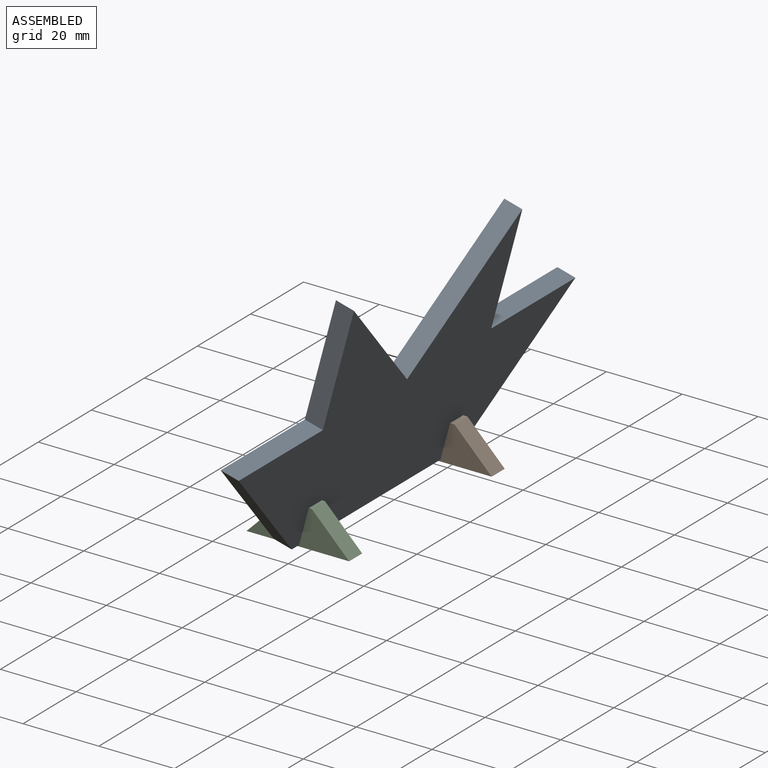
[diagram: assembled view]
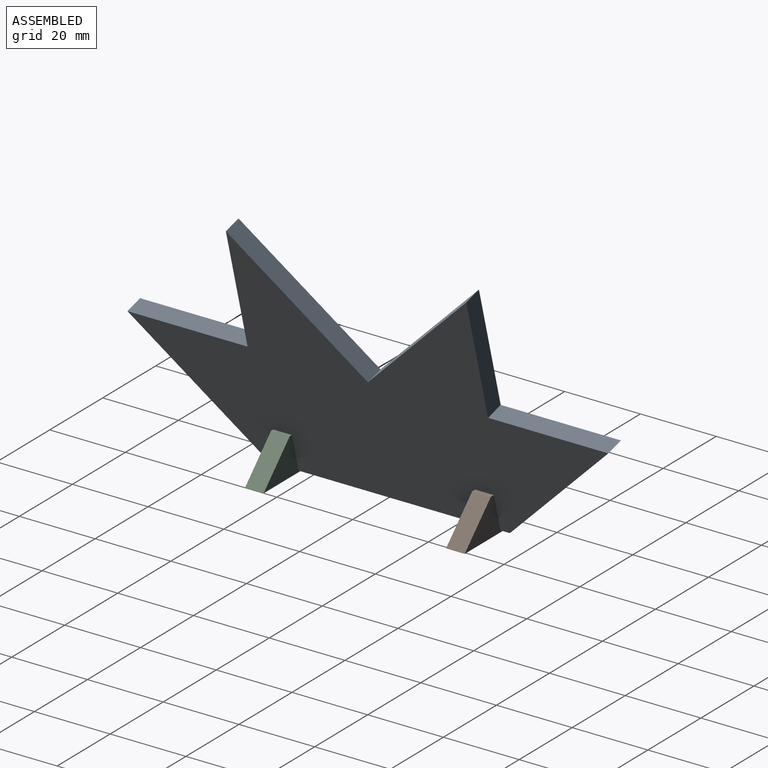
[diagram: assembled view, second angle]
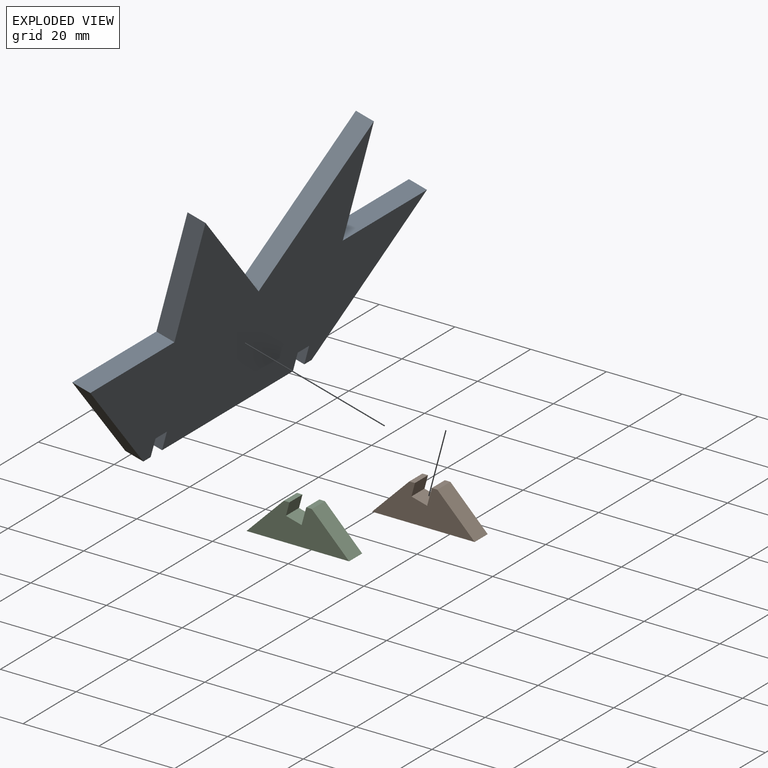
[diagram: exploded view]
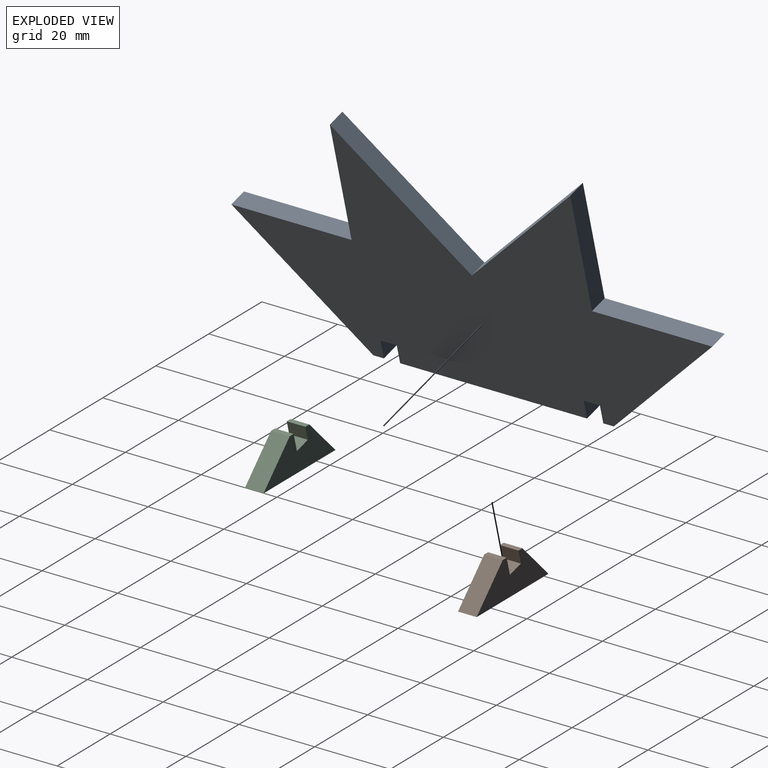
[diagram: exploded view, second angle]
ASSEMBLY  parts=3 mates=4
PART A: 19 faces, bbox 127x4.9x63.5 mm
  f0: plane 4.93x2.78mm, normal (0,0,-1), area 13.7mm2, adj f10,f11,f12,f18
  f1: plane 49.35x4.93mm, normal (0,0,-1), area 243.2mm2, adj f11,f12,f15,f17
  f2: plane 4.93x2.78mm, normal (0,0,-1), area 13.7mm2, adj f3,f11,f12,f14
  f3: plane 31.75x31.75mm, normal (0.71,0,-0.71), area 221.3mm2, adj f2,f4,f11,f12
  f4: plane 31.75x4.93mm, normal (0,0,1), area 156.5mm2, adj f3,f5,f11,f12
  f5: plane 31.75x4.93mm, normal (1,0,0), area 156.5mm2, adj f4,f6,f11,f12
  f6: plane 31.75x31.75mm, normal (-0.71,0,0.71), area 221.3mm2, adj f5,f7,f11,f12
  f7: plane 31.75x31.75mm, normal (0.71,0,0.71), area 221.3mm2, adj f6,f8,f11,f12
  f8: plane 31.75x4.93mm, normal (-1,0,0), area 156.5mm2, adj f7,f9,f11,f12
  f9: plane 31.75x4.93mm, normal (0,0,1), area 156.5mm2, adj f8,f10,f11,f12
  f10: plane 31.75x31.75mm, normal (-0.71,0,-0.71), area 221.3mm2, adj f0,f9,f11,f12
  f11: plane 127x63.5mm, normal (0,-1,0), area 3989.9mm2, adj f0,f1,f2,f3,f4,f5,f6,f7
  f12: plane 127x63.5mm, normal (0,1,0), area 3989.9mm2, adj f0,f1,f2,f3,f4,f5,f6,f7
  f13: plane 4.93x4.29mm, normal (0,0,-1), area 21.2mm2, adj f11,f12,f14,f15
  f14: plane 4.93x4.93mm, normal (-1,0,0), area 24.3mm2, adj f2,f11,f12,f13
  f15: plane 4.93x4.93mm, normal (1,0,0), area 24.3mm2, adj f1,f11,f12,f13
  f16: plane 4.93x4.29mm, normal (0,0,-1), area 21.2mm2, adj f11,f12,f17,f18
  f17: plane 4.93x4.93mm, normal (-1,0,0), area 24.3mm2, adj f1,f11,f12,f16
  f18: plane 4.93x4.93mm, normal (1,0,0), area 24.3mm2, adj f0,f11,f12,f16
PART B: 10 faces, bbox 27.1x4.9x9.9 mm
  f0: plane 4.93x1.47mm, normal (0,0,1), area 7.3mm2, adj f4,f5,f6,f9
  f1: plane 4.93x1.47mm, normal (0,0,1), area 7.3mm2, adj f2,f5,f6,f8
  f2: plane 9.86x9.86mm, normal (-0.71,0,0.71), area 68.7mm2, adj f1,f3,f5,f6
  f3: plane 27.1x4.93mm, normal (0,0,-1), area 133.5mm2, adj f2,f4,f5,f6
  f4: plane 9.86x9.86mm, normal (0.71,0,0.71), area 68.7mm2, adj f0,f3,f5,f6
  f5: plane 27.1x9.86mm, normal (0,-1,0), area 152.2mm2, adj f0,f1,f2,f3,f4,f7,f8,f9
  f6: plane 27.1x9.86mm, normal (0,1,0), area 152.2mm2, adj f0,f1,f2,f3,f4,f7,f8,f9
  f7: plane 4.93x4.15mm, normal (0.26,0,0.97), area 21.2mm2, adj f5,f6,f8,f9
  f8: plane 4.93x3.45mm, normal (0.97,0,-0.26), area 17.6mm2, adj f1,f5,f6,f7
  f9: plane 4.93x4.56mm, normal (-0.97,0,0.26), area 23.3mm2, adj f0,f5,f6,f7
PART C: same geometry as B
PLACE A rot(axis=(-0.13,0.13,-0.98),91deg) t=(0.34,24.04,0.37)mm
PLACE B t=(0.31,53.33,-0.08)mm
PLACE C at identity fixed
MATE planar A.f11 <-> C.f8  axis (-0.97,0,0.26) through (1.8,24.04,24.87)mm
MATE planar B.f7 <-> A.f16  axis (0.26,0,0.97) through (-0.77,50.86,5.77)mm
MATE planar A.f13 <-> C.f7  axis (-0.26,0,-0.97) through (-0.77,-2.78,5.77)mm
MATE planar A.f14 <-> C.f5  axis (0,1,0) through (-1.4,-4.93,3.39)mm
